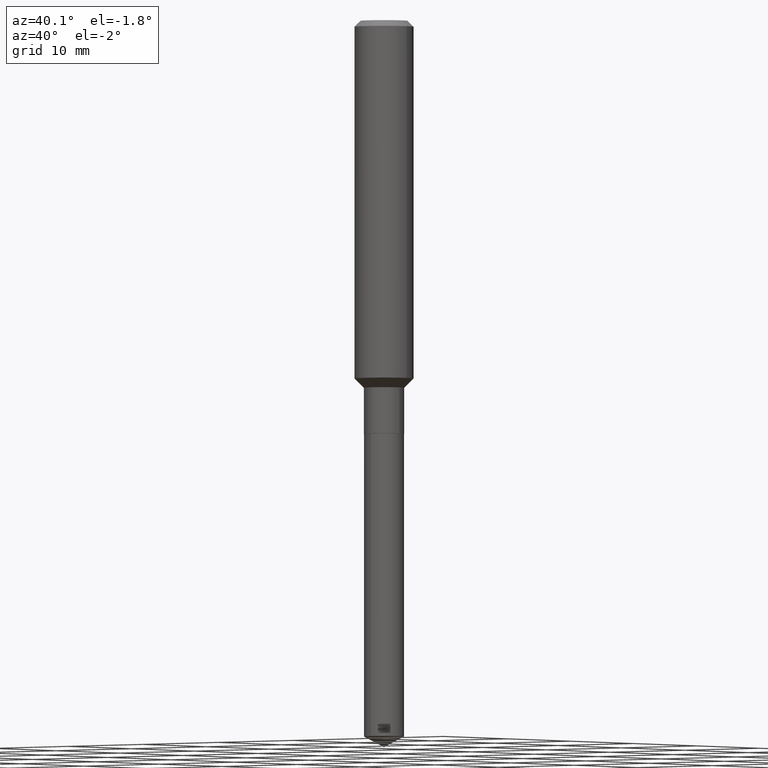
[diagram: clean part render]
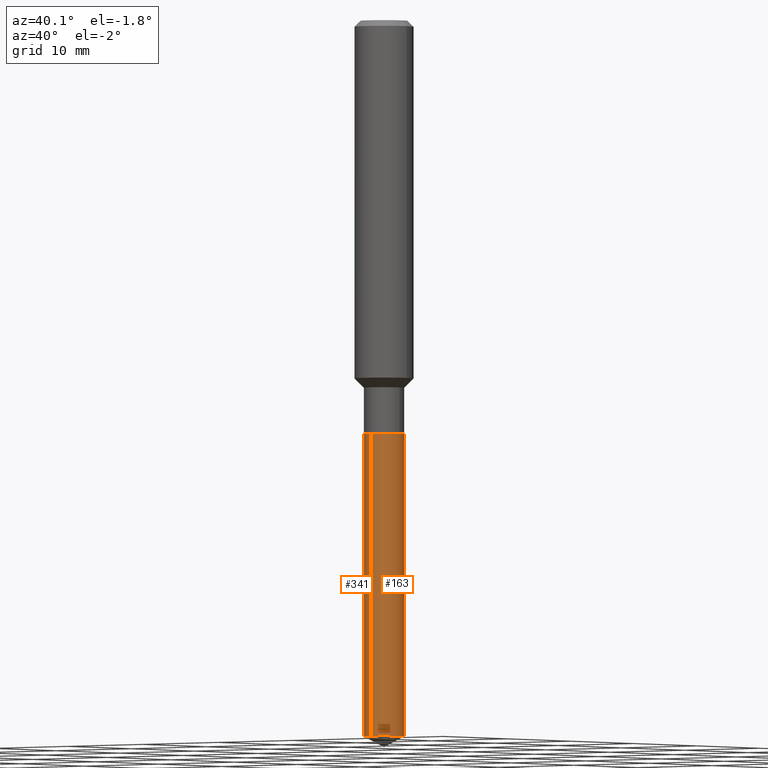
[diagram: same view with one multi-face feature highlighted, each face labeled with its STEP entity id]
A machine part, auxiliary view. The highlighted faces form ONE feature: a constant-radius fillet chain: 2 tangent blend faces with common blend radius 2.0498 mm. The faces share edges in the B-rep.
Their STEP definitions:
[1] entity #341 (Cylinder):
#1 = CARTESIAN_POINT ( 'NONE',  ( 4.053364546251863371E-29, -5.787130319132513889E-15, -1.657499999999999973 ) ) ;
#11 = CIRCLE ( 'NONE', #68, 0.08069999999999999396 ) ;
#22 = CARTESIAN_POINT ( 'NONE',  ( 5.734079877584412362E-16, 0.08069999999999420692, -1.657500000000000195 ) ) ;
#27 = ORIENTED_EDGE ( 'NONE', *, *, #353, .F. ) ;
#36 = CARTESIAN_POINT ( 'NONE',  ( -5.635250880892411374E-16, -0.08070000000000578100, -1.657499999999999751 ) ) ;
#38 = ORIENTED_EDGE ( 'NONE', *, *, #156, .T. ) ;
#41 = VERTEX_POINT ( 'NONE', #391 ) ;
#60 = LINE ( 'NONE', #22, #273 ) ;
#68 = AXIS2_PLACEMENT_3D ( 'NONE', #1, #71, #157 ) ;
#71 = DIRECTION ( 'NONE',  ( -2.445522596700028966E-29, 3.491404307764253718E-15, 1.000000000000000000 ) ) ;
#74 = CARTESIAN_POINT ( 'NONE',  ( 5.734079877584711143E-16, 0.08069999999998998808, -2.870491048864919570 ) ) ;
#87 = DIRECTION ( 'NONE',  ( -6.982962677686266711E-15, -1.000000000000000000, 3.385189583227092077E-15 ) ) ;
#90 = VERTEX_POINT ( 'NONE', #74 ) ;
#111 = DIRECTION ( 'NONE',  ( -6.982962677686266711E-15, -1.000000000000000000, 6.770379166454184154E-15 ) ) ;
#122 = ORIENTED_EDGE ( 'NONE', *, *, #168, .F. ) ;
#126 = CARTESIAN_POINT ( 'NONE',  ( -5.635250880892114565E-16, -0.08070000000001002760, -2.870491048864918682 ) ) ;
#156 = EDGE_CURVE ( 'NONE', #411, #399, #232, .T. ) ;
#157 = DIRECTION ( 'NONE',  ( -6.982962677686266711E-15, -1.000000000000000000, 3.385189583227092077E-15 ) ) ;
#168 = EDGE_CURVE ( 'NONE', #41, #399, #11, .T. ) ;
#176 = CYLINDRICAL_SURFACE ( 'NONE', #434, 0.08069999999999999396 ) ;
#197 = ORIENTED_EDGE ( 'NONE', *, *, #390, .T. ) ;
#232 = LINE ( 'NONE', #36, #233 ) ;
#233 = VECTOR ( 'NONE', #447, 39.37007874015748143 ) ;
#273 = VECTOR ( 'NONE', #406, 39.37007874015748143 ) ;
#282 = CARTESIAN_POINT ( 'NONE',  ( -5.635250880892411374E-16, -0.08070000000000578100, -1.657499999999999751 ) ) ;
#327 = DIRECTION ( 'NONE',  ( -2.445522596700028966E-29, 3.491404307764253718E-15, 1.000000000000000000 ) ) ;
#341 = ADVANCED_FACE ( 'NONE', ( #472 ), #176, .T. ) ;
#344 = DIRECTION ( 'NONE',  ( -2.445522596700028966E-29, 3.491404307764253718E-15, 1.000000000000000000 ) ) ;
#345 = AXIS2_PLACEMENT_3D ( 'NONE', #366, #344, #111 ) ;
#353 = EDGE_CURVE ( 'NONE', #90, #41, #60, .T. ) ;
#366 = CARTESIAN_POINT ( 'NONE',  ( 7.019761565845892683E-29, -1.002217249241897221E-14, -2.870491048864919126 ) ) ;
#390 = EDGE_CURVE ( 'NONE', #90, #411, #462, .T. ) ;
#391 = CARTESIAN_POINT ( 'NONE',  ( 5.734079877584710157E-16, 0.08069999999999420692, -1.657500000000000195 ) ) ;
#399 = VERTEX_POINT ( 'NONE', #282 ) ;
#406 = DIRECTION ( 'NONE',  ( -2.445522596700028966E-29, 3.491404307764253324E-15, 1.000000000000000000 ) ) ;
#411 = VERTEX_POINT ( 'NONE', #126 ) ;
#434 = AXIS2_PLACEMENT_3D ( 'NONE', #467, #327, #87 ) ;
#438 = EDGE_LOOP ( 'NONE', ( #27, #197, #38, #122 ) ) ;
#447 = DIRECTION ( 'NONE',  ( -2.445522596700028966E-29, 3.491404307764253324E-15, 1.000000000000000000 ) ) ;
#462 = CIRCLE ( 'NONE', #345, 0.08069999999999999396 ) ;
#467 = CARTESIAN_POINT ( 'NONE',  ( 4.053364546251863371E-29, -5.787130319132513889E-15, -1.657499999999999973 ) ) ;
#472 = FACE_OUTER_BOUND ( 'NONE', #438, .T. ) ;
[2] entity #163 (Cylinder):
#22 = CARTESIAN_POINT ( 'NONE',  ( 5.734079877584412362E-16, 0.08069999999999420692, -1.657500000000000195 ) ) ;
#34 = CYLINDRICAL_SURFACE ( 'NONE', #49, 0.08069999999999999396 ) ;
#36 = CARTESIAN_POINT ( 'NONE',  ( -5.635250880892411374E-16, -0.08070000000000578100, -1.657499999999999751 ) ) ;
#37 = ORIENTED_EDGE ( 'NONE', *, *, #379, .T. ) ;
#41 = VERTEX_POINT ( 'NONE', #391 ) ;
#49 = AXIS2_PLACEMENT_3D ( 'NONE', #195, #267, #483 ) ;
#60 = LINE ( 'NONE', #22, #273 ) ;
#73 = AXIS2_PLACEMENT_3D ( 'NONE', #286, #287, #246 ) ;
#74 = CARTESIAN_POINT ( 'NONE',  ( 5.734079877584711143E-16, 0.08069999999998998808, -2.870491048864919570 ) ) ;
#90 = VERTEX_POINT ( 'NONE', #74 ) ;
#108 = AXIS2_PLACEMENT_3D ( 'NONE', #227, #452, #383 ) ;
#126 = CARTESIAN_POINT ( 'NONE',  ( -5.635250880892114565E-16, -0.08070000000001002760, -2.870491048864918682 ) ) ;
#156 = EDGE_CURVE ( 'NONE', #411, #399, #232, .T. ) ;
#163 = ADVANCED_FACE ( 'NONE', ( #378 ), #34, .T. ) ;
#195 = CARTESIAN_POINT ( 'NONE',  ( 4.053364546251863371E-29, -5.787130319132513889E-15, -1.657499999999999973 ) ) ;
#227 = CARTESIAN_POINT ( 'NONE',  ( 7.019761565845892683E-29, -1.002217249241897221E-14, -2.870491048864919126 ) ) ;
#232 = LINE ( 'NONE', #36, #233 ) ;
#233 = VECTOR ( 'NONE', #447, 39.37007874015748143 ) ;
#246 = DIRECTION ( 'NONE',  ( -6.982962677686266711E-15, -1.000000000000000000, 3.385189583227092077E-15 ) ) ;
#267 = DIRECTION ( 'NONE',  ( -2.445522596700028966E-29, 3.491404307764253718E-15, 1.000000000000000000 ) ) ;
#273 = VECTOR ( 'NONE', #406, 39.37007874015748143 ) ;
#277 = ORIENTED_EDGE ( 'NONE', *, *, #353, .T. ) ;
#281 = ORIENTED_EDGE ( 'NONE', *, *, #326, .F. ) ;
#282 = CARTESIAN_POINT ( 'NONE',  ( -5.635250880892411374E-16, -0.08070000000000578100, -1.657499999999999751 ) ) ;
#286 = CARTESIAN_POINT ( 'NONE',  ( 4.053364546251863371E-29, -5.787130319132513889E-15, -1.657499999999999973 ) ) ;
#287 = DIRECTION ( 'NONE',  ( -2.445522596700028966E-29, 3.491404307764253718E-15, 1.000000000000000000 ) ) ;
#320 = ORIENTED_EDGE ( 'NONE', *, *, #156, .F. ) ;
#325 = CIRCLE ( 'NONE', #108, 0.08069999999999999396 ) ;
#326 = EDGE_CURVE ( 'NONE', #399, #41, #474, .T. ) ;
#353 = EDGE_CURVE ( 'NONE', #90, #41, #60, .T. ) ;
#370 = EDGE_LOOP ( 'NONE', ( #37, #277, #281, #320 ) ) ;
#378 = FACE_OUTER_BOUND ( 'NONE', #370, .T. ) ;
#379 = EDGE_CURVE ( 'NONE', #411, #90, #325, .T. ) ;
#383 = DIRECTION ( 'NONE',  ( -6.982962677686266711E-15, -1.000000000000000000, 6.770379166454184154E-15 ) ) ;
#391 = CARTESIAN_POINT ( 'NONE',  ( 5.734079877584710157E-16, 0.08069999999999420692, -1.657500000000000195 ) ) ;
#399 = VERTEX_POINT ( 'NONE', #282 ) ;
#406 = DIRECTION ( 'NONE',  ( -2.445522596700028966E-29, 3.491404307764253324E-15, 1.000000000000000000 ) ) ;
#411 = VERTEX_POINT ( 'NONE', #126 ) ;
#447 = DIRECTION ( 'NONE',  ( -2.445522596700028966E-29, 3.491404307764253324E-15, 1.000000000000000000 ) ) ;
#452 = DIRECTION ( 'NONE',  ( -2.445522596700028966E-29, 3.491404307764253718E-15, 1.000000000000000000 ) ) ;
#474 = CIRCLE ( 'NONE', #73, 0.08069999999999999396 ) ;
#483 = DIRECTION ( 'NONE',  ( -6.982962677686266711E-15, -1.000000000000000000, 3.385189583227092077E-15 ) ) ;